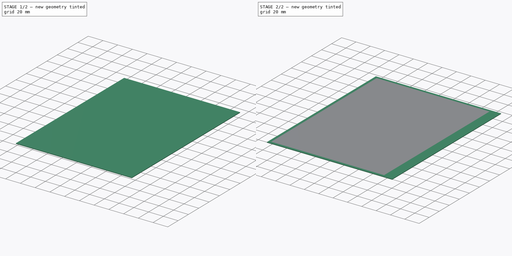
[diagram: build sequence overview — one tinted view per stage of 2, left to right]
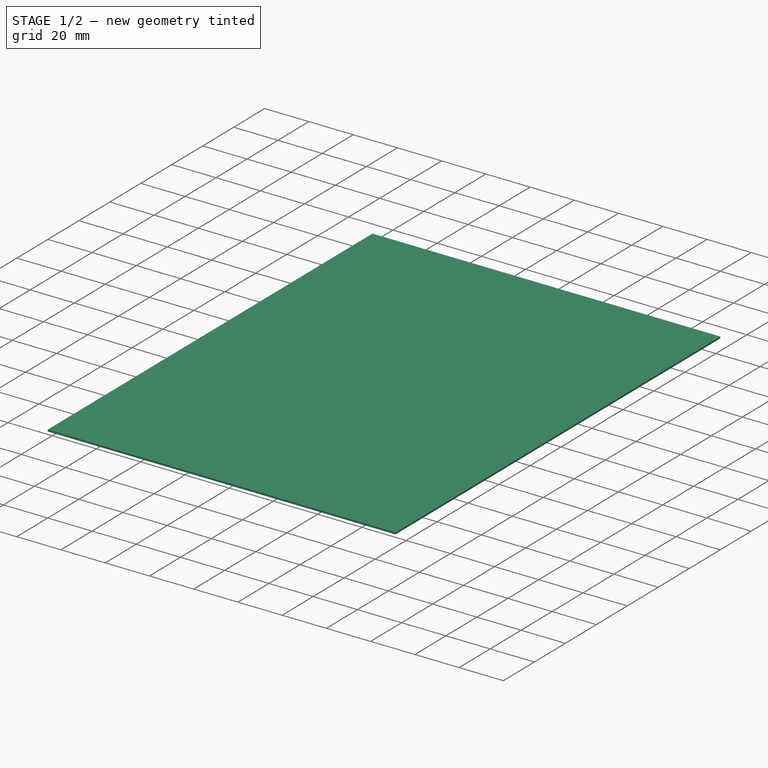
[diagram: stage 1 of 2 — iso view after this stage's code; geometry added in this stage tinted green]
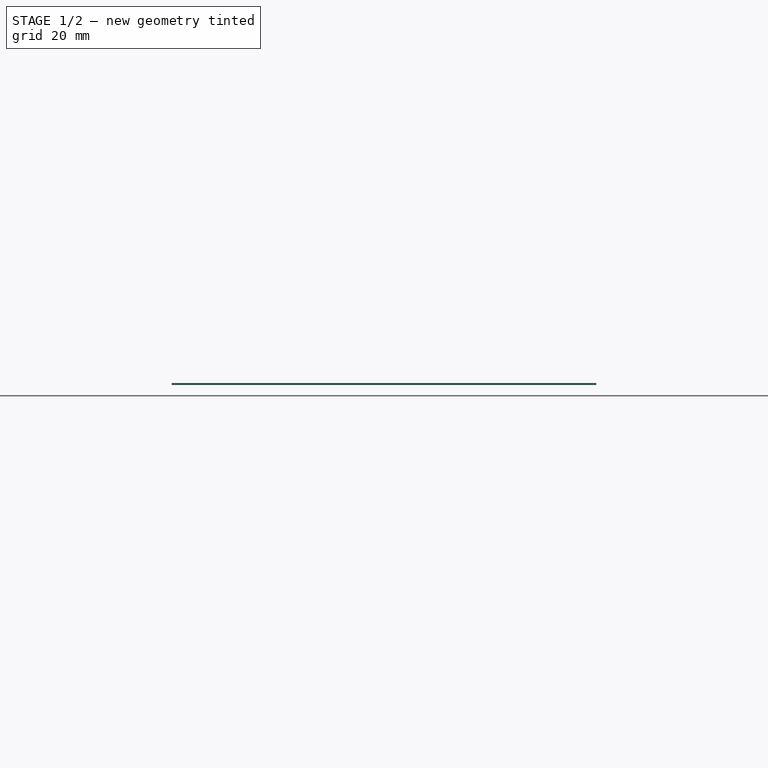
[diagram: stage 1 of 2 — front view after this stage's code; geometry added in this stage tinted green]
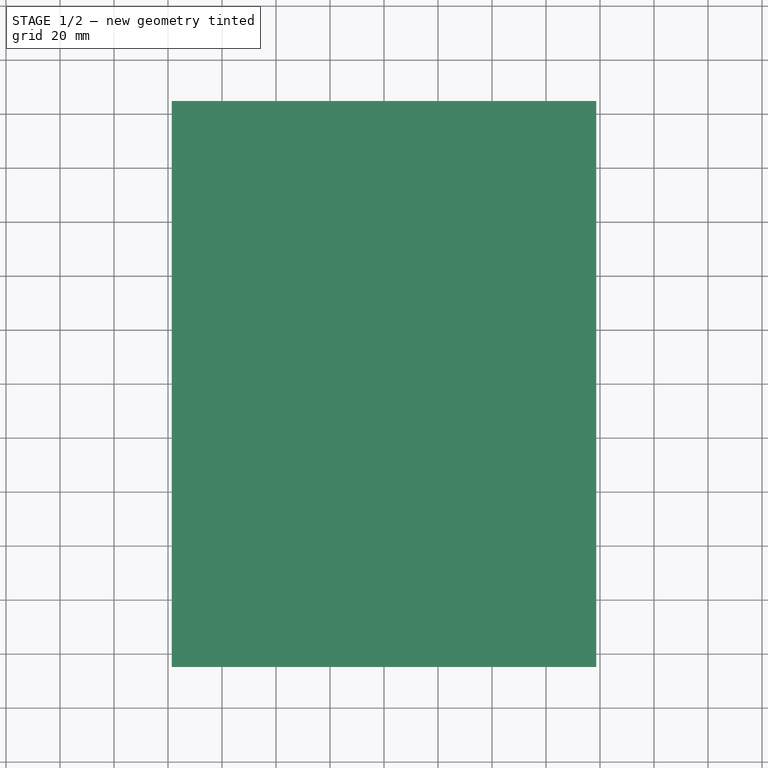
[diagram: stage 1 of 2 — top view after this stage's code; geometry added in this stage tinted green]
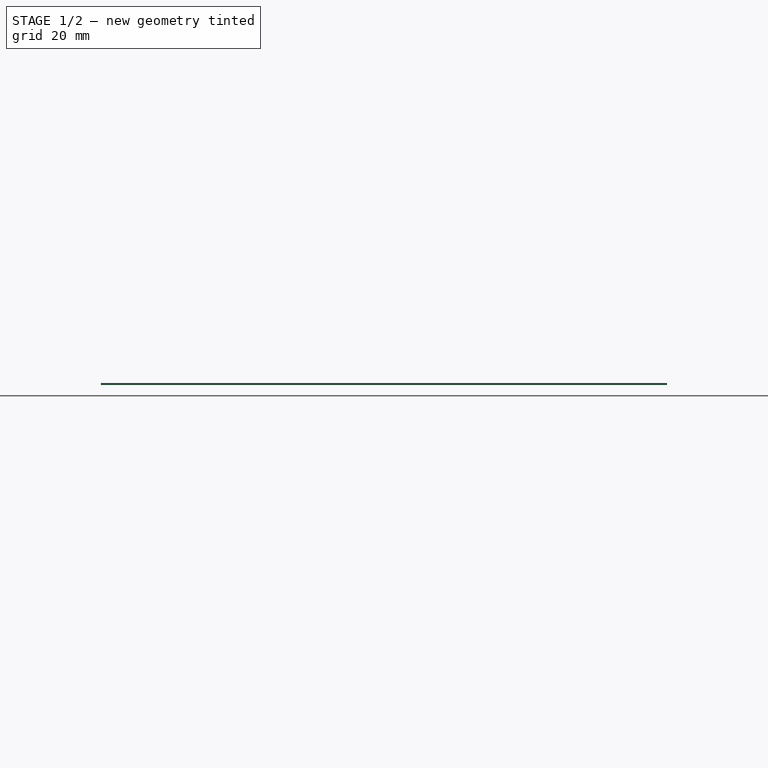
[diagram: stage 1 of 2 — right view after this stage's code; geometry added in this stage tinted green]
FCSTD DOCUMENT  (FreeCAD 0.20R29410 (Git))
Label: waveshare_10.3_1872x1404_EPD
License: All rights reserved
LicenseURL: http://en.wikipedia.org/wiki/All_rights_reserved
objects: Sketcher::SketchObject×4, PartDesign::Pad×2, PartDesign::CoordinateSystem×1, PartDesign::Body×1
note: 10 computed .brp shape members not serialized (recipe doc carries the construction recipe); baked Part::Feature solids carry a one-line shape summary decoded from their .brp

FEATURE [Sketcher::SketchObject] Sketch
  FullyConstrained = true
  MapMode = 5
  Support = -> [XY_Plane]
  sketch-geometry (4):
    g0: LineSegment StartX=-78.625 StartY=104.83 StartZ=0 EndX=78.625 EndY=104.83 EndZ=0
    g1: LineSegment StartX=78.625 StartY=104.83 StartZ=0 EndX=78.625 EndY=-104.83 EndZ=0
    g2: LineSegment StartX=78.625 StartY=-104.83 StartZ=0 EndX=-78.625 EndY=-104.83 EndZ=0
    g3: LineSegment StartX=-78.625 StartY=-104.83 StartZ=0 EndX=-78.625 EndY=104.83 EndZ=0
  constraints (11):
    c: Coincident(g0,g1)
    c: Coincident(g1,g2)
    c: Coincident(g2,g3)
    c: Coincident(g3,g0)
    c: Horizontal(g0)
    c: Horizontal(g2)
    c: Vertical(g1)
    c: Vertical(g3)
    c: Symmetric(g1,g0,g-1)
    c: DistanceX(g0,g0) = 157.25
    c: DistanceY(g1,g1) = 209.66
FEATURE [PartDesign::Pad] Pad  label="active-area"
  Direction = (0,0,1)
  Length = 0.78
  Length2 = 10
  Profile = -> Sketch
  ReferenceAxis = -> Sketch [N_Axis]
  Refine = true
  Type = 0
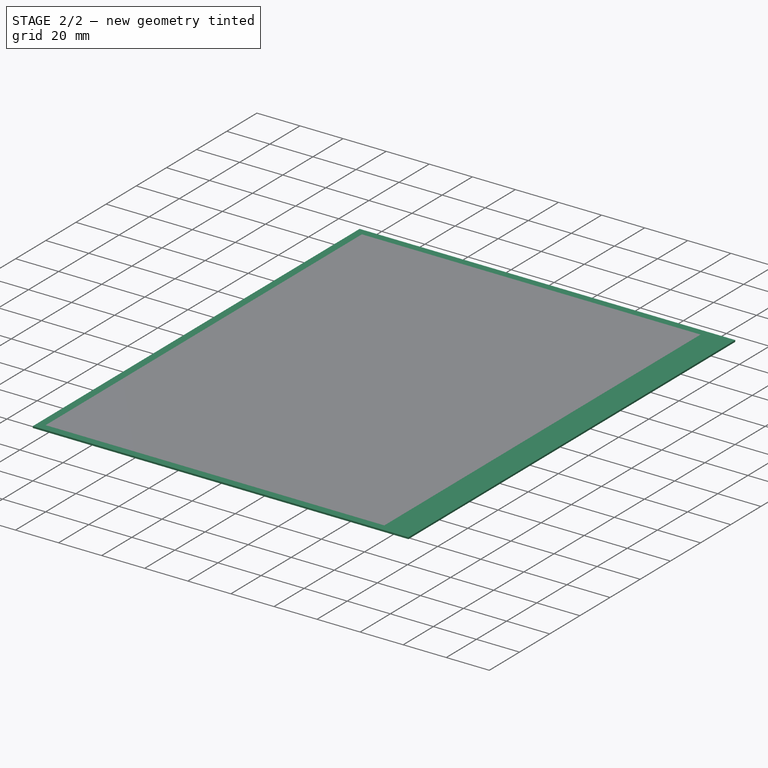
[diagram: stage 2 of 2 — iso view after this stage's code; geometry added in this stage tinted green]
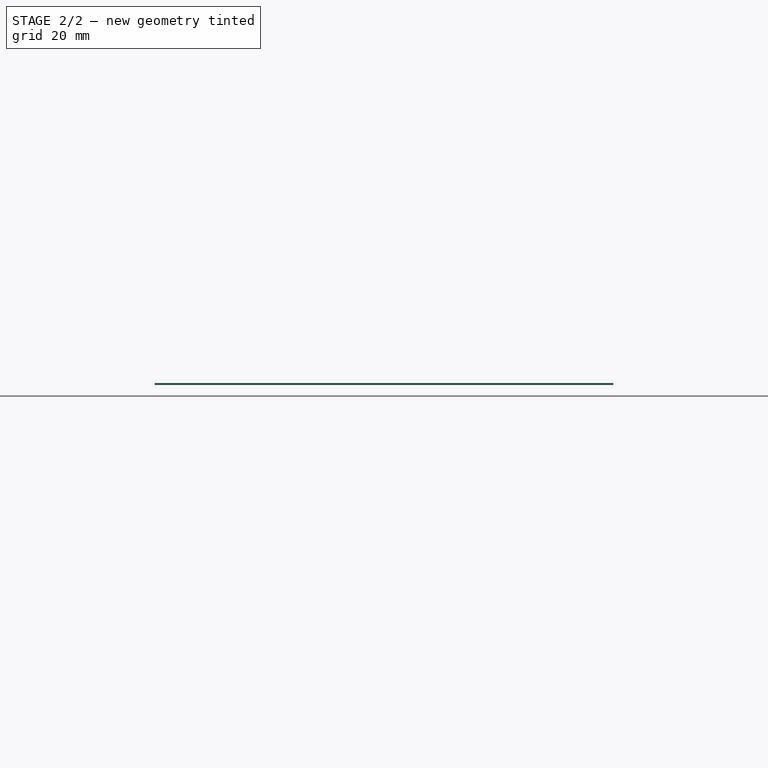
[diagram: stage 2 of 2 — front view after this stage's code; geometry added in this stage tinted green]
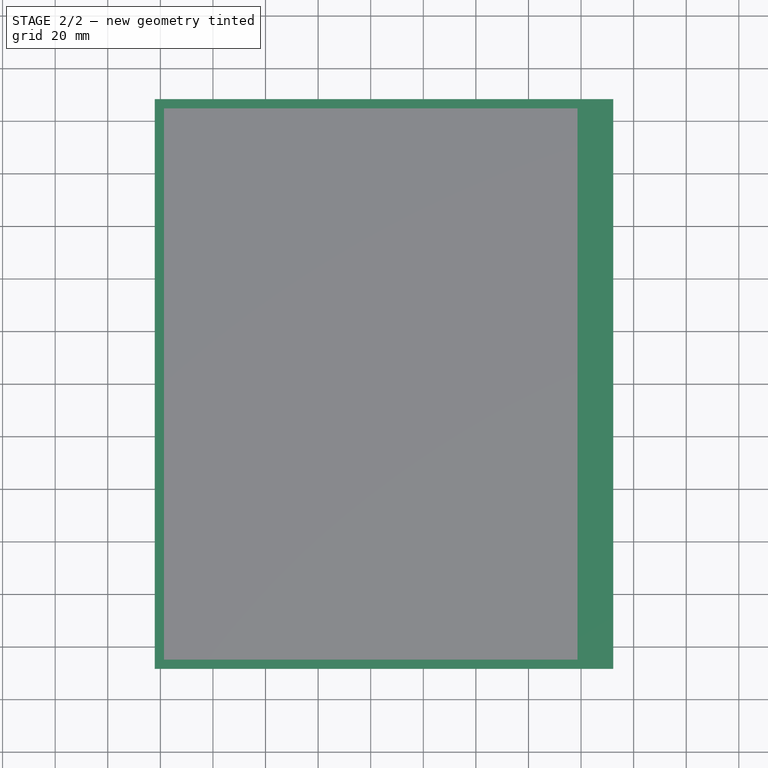
[diagram: stage 2 of 2 — top view after this stage's code; geometry added in this stage tinted green]
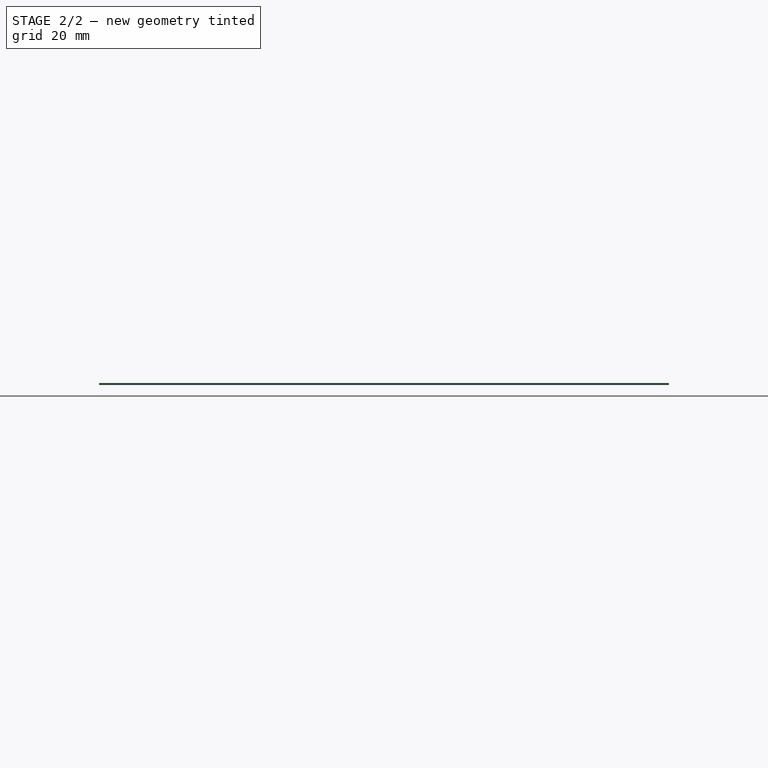
[diagram: stage 2 of 2 — right view after this stage's code; geometry added in this stage tinted green]
FEATURE [Sketcher::SketchObject] Sketch001
  ExternalGeometry = -> [Sketch]
  FullyConstrained = true
  MapMode = 5
  Support = -> [XY_Plane]
  sketch-geometry (6):
    g0: LineSegment StartX=-82.145 StartY=108.35 StartZ=0 EndX=92.255 EndY=108.35 EndZ=0
    g1: LineSegment StartX=92.255 StartY=108.35 StartZ=0 EndX=92.255 EndY=-108.35 EndZ=0
    g2: LineSegment StartX=92.255 StartY=-108.35 StartZ=0 EndX=-82.145 EndY=-108.35 EndZ=0
    g3: LineSegment StartX=-82.145 StartY=-108.35 StartZ=0 EndX=-82.145 EndY=108.35 EndZ=0
    g4: LineSegment StartX=-78.625 StartY=104.83 StartZ=0 EndX=-82.145 EndY=104.83 EndZ=0
    g5: LineSegment StartX=-78.625 StartY=104.83 StartZ=0 EndX=-78.625 EndY=108.35 EndZ=0
  constraints (20):
    c: Coincident(g0,g1)
    c: Coincident(g1,g2)
    c: Coincident(g2,g3)
    c: Coincident(g3,g0)
    c: Horizontal(g0)
    c: Horizontal(g2)
    c: Vertical(g1)
    c: Symmetric(g0,g2,g-1)
    c: DistanceY(g3,g3) = 216.7
    c: DistanceX(g0,g0) = 174.4
    c: Coincident(g4,g-3)
    c: PointOnObject(g4,g3)
    c: Horizontal(g4)
    c: Coincident(g5,g4)
    c: PointOnObject(g5,g0)
    c: Vertical(g5)
    c: Equal(g5,g4)
    c: DistanceX(g4,g4) = 3.52
    c: DistanceX(g4,g-1) = 82.145
    c: DistanceX(g-1,g0) = 92.255
FEATURE [PartDesign::Pad] Pad001  label="frame"
  BaseFeature = -> Pad
  Direction = (0,0,1)
  Length = 0.77
  Length2 = 10
  Profile = -> Sketch001
  ReferenceAxis = -> Sketch001 [N_Axis]
  Refine = true
  Type = 0
FEATURE [Sketcher::SketchObject] Sketch002
  AttachmentOffset = pos=(0,0,-58.85) rot=(0,0,1;0rad)
  ExternalGeometry = -> [Sketch001]
  FullyConstrained = true
  MapMode = 5
  Placement = pos=(0,58.85,1.31e-14) rot=(1,0,0;1.5708rad)
  Support = -> [XZ_Plane]
  expr: .AttachmentOffset.Base.z = -(216.7 / 2 - 49.5)
  sketch-geometry (2):
    g0: ArcOfCircle CenterX=92.255 CenterY=-2.5 CenterZ=0 NormalX=0 NormalY=0 NormalZ=1 AngleXU=0 Radius=2.5 StartAngle=4.71239 EndAngle=7.85398
    g1: LineSegment StartX=92.255 StartY=-5 StartZ=0 EndX=52.255 EndY=-5 EndZ=0
  constraints (6):
    c: Coincident(g0,g-3)
    c: Horizontal(g1)
    c: Tangent(g1,g0) = 1.5708
    c: Tangent(g0,g-1)
    c: DistanceX(g1,g1) = 40
    c: Diameter(g0) = 5
FEATURE [PartDesign::CoordinateSystem] display_center  label="display-center"
  AttacherType = Attacher::AttachEngine3D
  MapMode = 45
  Placement = pos=(-6e-16,-8e-16,0.78) rot=(0,0,1;0rad)
  Support = -> [Pad001]
FEATURE [Sketcher::SketchObject] Sketch003  label="FPC-bulk-width"
  ExternalGeometry = -> [Sketch001]
  FullyConstrained = false
  MapMode = 5
  Support = -> [XY_Plane]
  sketch-geometry (4):
    g0: LineSegment StartX=78.625 StartY=68.35 StartZ=0 EndX=102.72 EndY=68.35 EndZ=0
    g1: LineSegment StartX=102.72 StartY=68.35 StartZ=0 EndX=102.72 EndY=-68.35 EndZ=0
    g2: LineSegment StartX=102.72 StartY=-68.35 StartZ=0 EndX=78.625 EndY=-68.35 EndZ=0
    g3: LineSegment StartX=78.625 StartY=-68.35 StartZ=0 EndX=78.625 EndY=68.35 EndZ=0
  constraints (11):
    c: Coincident(g0,g1)
    c: Coincident(g1,g2)
    c: Coincident(g2,g3)
    c: Coincident(g3,g0)
    c: Horizontal(g0)
    c: Horizontal(g2)
    c: Vertical(g1)
    c: Vertical(g3)
    c: DistanceY(g-4,g1) = 40
    c: DistanceY(g0,g-3) = 40
    c: DistanceY(g1,g1) = 136.7
FEATURE [PartDesign::Body] Body  label="EPD_10.3-inch"
  Group = -> [Sketch,Pad,Sketch001,Pad001,Sketch002,display_center,Sketch003]
  Origin = -> Origin
  Tip = -> Pad001
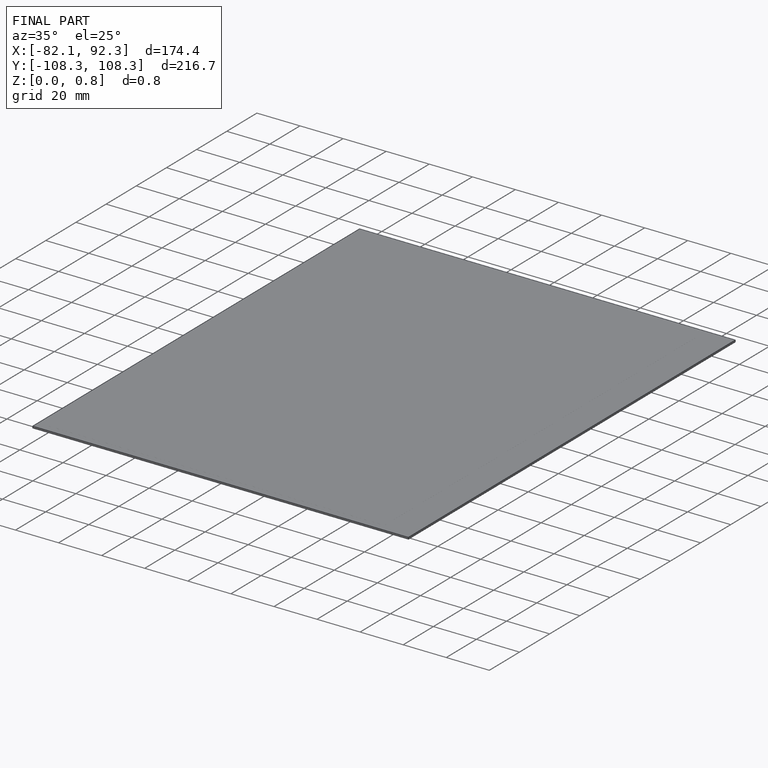
[diagram: finished part — iso view with bounding-box wireframe]
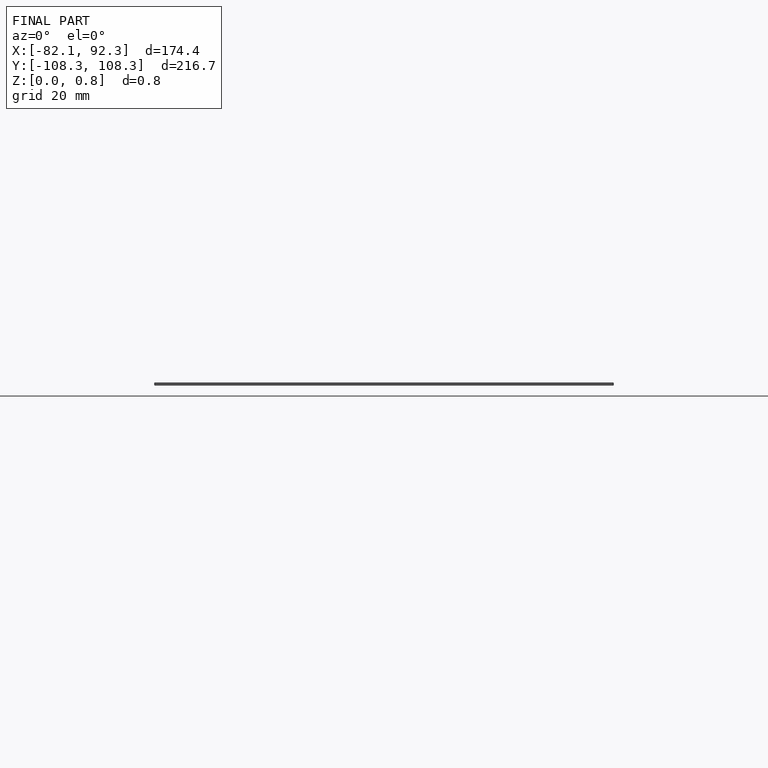
[diagram: finished part — front view with bounding-box wireframe]
